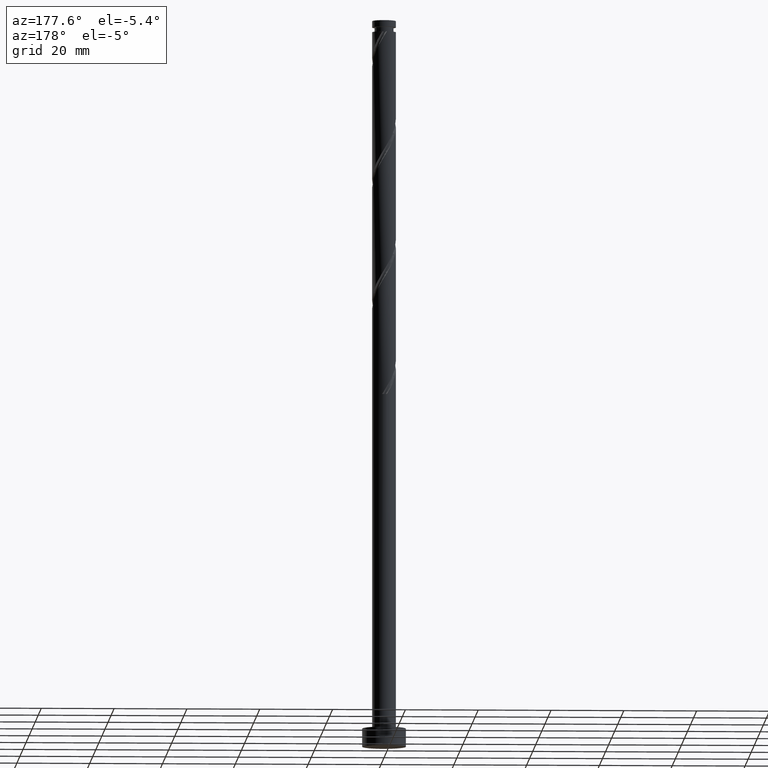
[diagram: clean part render]
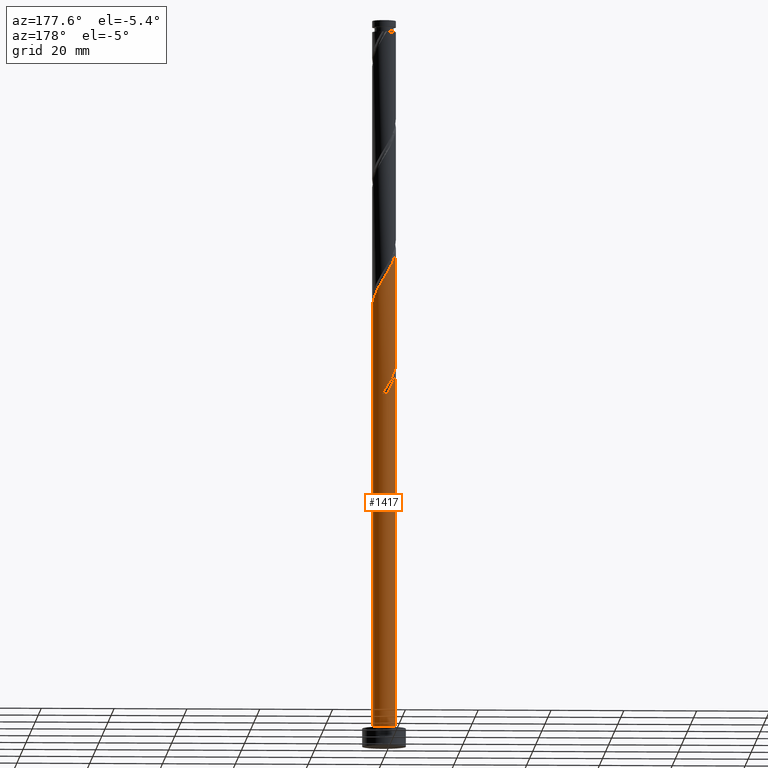
[diagram: same view with one face highlighted and labeled with its STEP entity id]
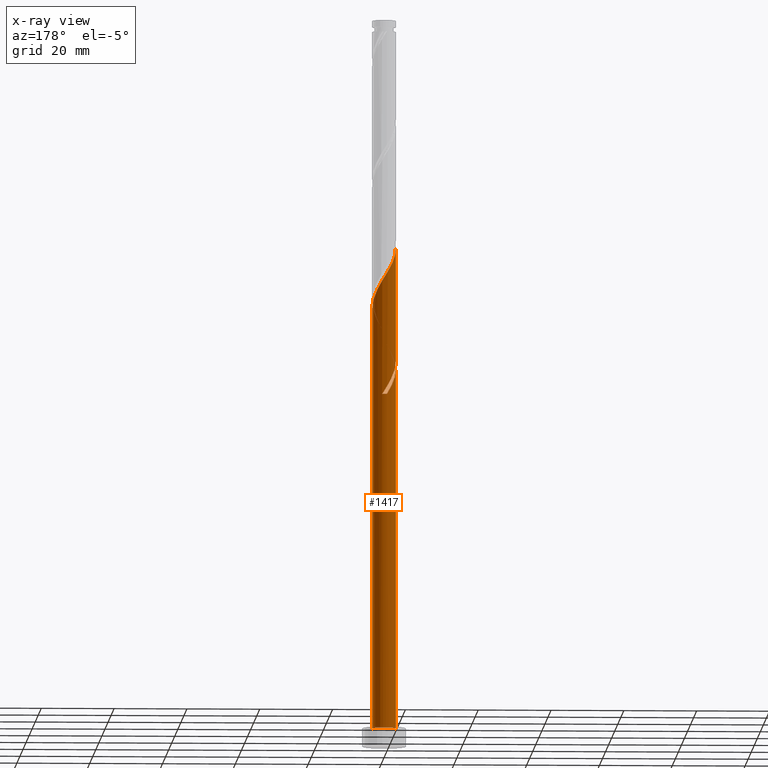
[diagram: x-ray of the same camera — body ghosted, the highlighted face saturated]
A machine part, auxiliary view. The second image highlights one B-rep face of the part: STEP entity #1417.
The next image is the same camera in x-ray: the body ghosted, the highlighted face saturated — about 0% of this face is hidden behind the body in this view.
In plain terms, the highlighted cylindrical surface (edge-blend (fillet) strip) has radius 3.25 mm, axis along (-0, -0, -1).
Its self-contained STEP definition (entity closure, byte-faithful):
#18 = EDGE_CURVE ( 'NONE', #1744, #25, #650, .T. ) ;
#19 = DIRECTION ( 'NONE',  ( 0.000000000000000000, 0.000000000000000000, 1.000000000000000000 ) ) ;
#25 = VERTEX_POINT ( 'NONE', #219 ) ;
#36 = AXIS2_PLACEMENT_3D ( 'NONE', #689, #412, #140 ) ;
#39 = CARTESIAN_POINT ( 'NONE',  ( -3.250000000000004441, -2.048668468775938040E-15, 137.5356658746228788 ) ) ;
#43 = CARTESIAN_POINT ( 'NONE',  ( 2.718314483348208022, 1.832031559402690579, 124.0158991964996176 ) ) ;
#72 = CARTESIAN_POINT ( 'NONE',  ( -3.099854822243938823, 1.066055038935159516, 104.5714547520551605 ) ) ;
#84 = CARTESIAN_POINT ( 'NONE',  ( -2.434919993993785337, 2.152594858037458536, 102.4881214187218745 ) ) ;
#100 = AXIS2_PLACEMENT_3D ( 'NONE', #788, #1325, #1338 ) ;
#116 = CARTESIAN_POINT ( 'NONE',  ( -2.709450634661942470, 1.794819561496372229, 101.0992325298329320 ) ) ;
#133 = EDGE_CURVE ( 'NONE', #983, #710, #1152, .T. ) ;
#140 = DIRECTION ( 'NONE',  ( -1.000000000000000000, 0.000000000000000000, 0.000000000000000000 ) ) ;
#177 = VERTEX_POINT ( 'NONE', #368 ) ;
#219 = CARTESIAN_POINT ( 'NONE',  ( 0.6467418341193044151, 3.184999999999999165, 96.93256586316628898 ) ) ;
#222 = ORIENTED_EDGE ( 'NONE', *, *, #1021, .F. ) ;
#225 = CARTESIAN_POINT ( 'NONE',  ( 0.1996340181341361431, 3.243862860665297276, 128.8770103076107034 ) ) ;
#247 = DIRECTION ( 'NONE',  ( -0.000000000000000000, -0.000000000000000000, -1.000000000000000000 ) ) ;
#253 = CARTESIAN_POINT ( 'NONE',  ( -3.217580543574532381, 0.6266966655717148837, 136.5158991964996176 ) ) ;
#260 = CARTESIAN_POINT ( 'NONE',  ( -2.473158156672230934, 2.151525504639371977, 100.4047880853885175 ) ) ;
#263 = CARTESIAN_POINT ( 'NONE',  ( -3.081661828113092305, 1.032405141962543738, 135.8214547520551605 ) ) ;
#297 = VERTEX_POINT ( 'NONE', #1082 ) ;
#305 = DIRECTION ( 'NONE',  ( -0.000000000000000000, -0.000000000000000000, -1.000000000000000000 ) ) ;
#307 = CARTESIAN_POINT ( 'NONE',  ( -0.6467418341193035269, 3.185000000000004494, 96.93256586316628898 ) ) ;
#355 = CARTESIAN_POINT ( 'NONE',  ( -2.709450634661942470, 1.794819561496372229, 134.4325658631662748 ) ) ;
#361 = CARTESIAN_POINT ( 'NONE',  ( -3.250000000000004885, 0.09991134288743774849, 104.0391688532613870 ) ) ;
#368 = CARTESIAN_POINT ( 'NONE',  ( -3.250000000000000444, 0.000000000000000000, 5.000000000000000000 ) ) ;
#375 = CARTESIAN_POINT ( 'NONE',  ( -2.151525504639367536, 2.473158156672226493, 101.7936769742773748 ) ) ;
#406 = CARTESIAN_POINT ( 'NONE',  ( -3.250000000000005773, 0.09991134288741990166, 137.3725021865947440 ) ) ;
#412 = DIRECTION ( 'NONE',  ( -0.000000000000000000, -0.000000000000000000, -1.000000000000000000 ) ) ;
#463 = CARTESIAN_POINT ( 'NONE',  ( -1.449043299168926158, 2.909084652796075865, 131.6547880853885033 ) ) ;
#472 = CARTESIAN_POINT ( 'NONE',  ( 1.438113618353373813, 2.945743112651654005, 126.7936769742774317 ) ) ;
#488 = CARTESIAN_POINT ( 'NONE',  ( -3.243862860665297276, 0.1996340181341340891, 103.8770103076107034 ) ) ;
#491 = CARTESIAN_POINT ( 'NONE',  ( -1.032405141962541295, 3.081661828113089197, 99.71034364094407465 ) ) ;
#514 = CARTESIAN_POINT ( 'NONE',  ( -2.945743112651655338, 1.438113618353372924, 101.7936769742774032 ) ) ;
#539 = ORIENTED_EDGE ( 'NONE', *, *, #829, .F. ) ;
#546 = AXIS2_PLACEMENT_3D ( 'NONE', #691, #19, #1098 ) ;
#592 = CARTESIAN_POINT ( 'NONE',  ( -1.066055038935161070, 3.099854822243945041, 97.62701030761073184 ) ) ;
#606 = CARTESIAN_POINT ( 'NONE',  ( 3.185000000000004494, 0.6467418341193036380, 121.9325658631662748 ) ) ;
#631 = CARTESIAN_POINT ( 'NONE',  ( -2.152594858037460757, 2.434919993993788889, 99.71034364094408886 ) ) ;
#633 = CARTESIAN_POINT ( 'NONE',  ( -2.909084652796070980, 1.449043299168925270, 103.8770103076107461 ) ) ;
#642 = CARTESIAN_POINT ( 'NONE',  ( -0.1996340181341325348, 3.243862860665293280, 98.32145475205518892 ) ) ;
#650 =( BOUNDED_CURVE ( )  B_SPLINE_CURVE ( 2, ( #893, #1438, #1697, #72, #633, #1445, #84, #375, #1158, #1165, #491, #1286, #642, #1181, #1430 ),
 .UNSPECIFIED., .F., .T. ) 
 B_SPLINE_CURVE_WITH_KNOTS ( ( 3, 2, 2, 2, 2, 2, 2, 3 ),
 ( 0.9295317669814463502, 0.9375000000000000000, 0.9479166666666666297, 0.9583333333333333703, 0.9687500000000000000, 0.9791666666666666297, 0.9895833333333333703, 1.000000000000000000 ),
 .UNSPECIFIED. ) 
 CURVE ( )  GEOMETRIC_REPRESENTATION_ITEM ( )  RATIONAL_B_SPLINE_CURVE ( ( 0.9062941362546435009, 0.9031415850403479162, 0.9090909090909231605, 0.9013135103398417503, 0.9090909090909231605, 0.9013135103398417503, 0.9090909090909231605, 0.9013135103398417503, 0.9090909090909231605, 0.9013135103398417503, 0.9090909090909231605, 0.9013135103398417503, 0.9090909090909231605, 0.9013135103398417503, 0.9090909090909231605 ) ) 
 REPRESENTATION_ITEM ( '' )  );
#655 = CYLINDRICAL_SURFACE ( 'NONE', #36, 3.250000000000000444 ) ;
#689 = CARTESIAN_POINT ( 'NONE',  ( 0.000000000000000000, 0.000000000000000000, 200.0000000000000000 ) ) ;
#691 = CARTESIAN_POINT ( 'NONE',  ( 0.000000000000000000, 0.000000000000000000, 5.000000000000000000 ) ) ;
#694 = ORIENTED_EDGE ( 'NONE', *, *, #901, .T. ) ;
#708 = VERTEX_POINT ( 'NONE', #39 ) ;
#710 = VERTEX_POINT ( 'NONE', #1121 ) ;
#735 = CARTESIAN_POINT ( 'NONE',  ( -1.832031559402692134, 2.718314483348207133, 132.3492325298329604 ) ) ;
#739 = ORIENTED_EDGE ( 'NONE', *, *, #1011, .T. ) ;
#756 = CARTESIAN_POINT ( 'NONE',  ( -2.945743112651655338, 1.438113618353372924, 135.1270103076107603 ) ) ;
#776 = VECTOR ( 'NONE', #305, 1000.000000000000000 ) ;
#788 = CARTESIAN_POINT ( 'NONE',  ( 0.000000000000000000, 0.000000000000000000, 96.93256586316631740 ) ) ;
#793 = CARTESIAN_POINT ( 'NONE',  ( -3.250000000000004441, -2.048668468775938040E-15, 137.5356658746228788 ) ) ;
#814 = CARTESIAN_POINT ( 'NONE',  ( -3.250000000000000444, 0.000000000000000000, 200.0000000000000000 ) ) ;
#824 = ORIENTED_EDGE ( 'NONE', *, *, #133, .T. ) ;
#829 = EDGE_CURVE ( 'NONE', #1528, #297, #1193, .T. ) ;
#837 = ORIENTED_EDGE ( 'NONE', *, *, #1483, .F. ) ;
#860 = CIRCLE ( 'NONE', #100, 3.250000000000000444 ) ;
#869 = CARTESIAN_POINT ( 'NONE',  ( -2.473158156672230934, 2.151525504639371977, 133.7381214187218461 ) ) ;
#883 = CARTESIAN_POINT ( 'NONE',  ( 0.6266966655717167711, 3.217580543574532381, 128.1825658631663032 ) ) ;
#893 = CARTESIAN_POINT ( 'NONE',  ( -3.250000000000000000, 3.618815835356064856E-15, 106.3294658517096707 ) ) ;
#898 = EDGE_CURVE ( 'NONE', #983, #708, #1092, .T. ) ;
#901 = EDGE_CURVE ( 'NONE', #1528, #25, #860, .T. ) ;
#933 = ORIENTED_EDGE ( 'NONE', *, *, #18, .F. ) ;
#963 = FACE_OUTER_BOUND ( 'NONE', #1122, .T. ) ;
#965 = LINE ( 'NONE', #1503, #776 ) ;
#983 = VERTEX_POINT ( 'NONE', #1130 ) ;
#1000 = CARTESIAN_POINT ( 'NONE',  ( -0.6467418341193035269, 3.185000000000004494, 130.2658991964996176 ) ) ;
#1011 = EDGE_CURVE ( 'NONE', #710, #177, #1311, .T. ) ;
#1021 = EDGE_CURVE ( 'NONE', #297, #177, #965, .T. ) ;
#1036 = CARTESIAN_POINT ( 'NONE',  ( 3.250000000000000444, 3.980102097228898231E-16, 200.0000000000000000 ) ) ;
#1082 = CARTESIAN_POINT ( 'NONE',  ( -3.250000000000004441, -2.048668468775938040E-15, 104.2023325412895502 ) ) ;
#1092 =( BOUNDED_CURVE ( )  B_SPLINE_CURVE ( 2, ( #1387, #1280, #606, #1144, #1684, #43, #1346, #1391, #1274, #472, #1292, #883, #225, #1148, #1000, #1403, #463, #735, #1174, #869, #355, #756, #263, #253, #1741, #406, #793 ),
 .UNSPECIFIED., .F., .T. ) 
 B_SPLINE_CURVE_WITH_KNOTS ( ( 3, 2, 2, 2, 2, 2, 2, 2, 2, 2, 2, 2, 2, 3 ),
 ( 0.1795317669814463224, 0.1875000000000000000, 0.1979166666666666297, 0.2083333333333333703, 0.2187500000000000000, 0.2291666666666666297, 0.2395833333333333703, 0.2500000000000000000, 0.2604166666666666297, 0.2708333333333333703, 0.2812500000000000000, 0.2916666666666666297, 0.3020833333333333703, 0.3045317669814467942 ),
 .UNSPECIFIED. ) 
 CURVE ( )  GEOMETRIC_REPRESENTATION_ITEM ( )  RATIONAL_B_SPLINE_CURVE ( ( 0.9062941362546506063, 0.9031415850403547996, 0.9090909090909304879, 0.9013135103398486336, 0.9090909090909304879, 0.9013135103398486336, 0.9090909090909304879, 0.9013135103398486336, 0.9090909090909304879, 0.9013135103398486336, 0.9090909090909304879, 0.9013135103398486336, 0.9090909090909304879, 0.9013135103398486336, 0.9090909090909304879, 0.9013135103398486336, 0.9090909090909304879, 0.9013135103398486336, 0.9090909090909304879, 0.9013135103398486336, 0.9090909090909304879, 0.9013135103398486336, 0.9090909090909304879, 0.9013135103398486336, 0.9090909090909304879, 0.9072628343904237669, 0.9062941362546502733 ) ) 
 REPRESENTATION_ITEM ( '' )  );
#1098 = DIRECTION ( 'NONE',  ( 1.000000000000000000, 0.000000000000000000, 0.000000000000000000 ) ) ;
#1121 = CARTESIAN_POINT ( 'NONE',  ( 3.250000000000000444, 3.980102097228898231E-16, 5.000000000000000000 ) ) ;
#1122 = EDGE_LOOP ( 'NONE', ( #1349, #824, #739, #222, #539, #694, #933, #837 ) ) ;
#1130 = CARTESIAN_POINT ( 'NONE',  ( 3.250000000000004441, -4.486135333085995230E-17, 120.8689992079562217 ) ) ;
#1131 = CARTESIAN_POINT ( 'NONE',  ( -1.832031559402692134, 2.718314483348207133, 99.01589919649963178 ) ) ;
#1144 = CARTESIAN_POINT ( 'NONE',  ( 3.099854822243945929, 1.066055038935159960, 122.6270103076107461 ) ) ;
#1148 = CARTESIAN_POINT ( 'NONE',  ( -0.2274286293034444573, 3.270145177756065280, 129.5714547520551605 ) ) ;
#1152 = LINE ( 'NONE', #1036, #1169 ) ;
#1158 = CARTESIAN_POINT ( 'NONE',  ( -1.794819561496369120, 2.709450634661939361, 101.0992325298329746 ) ) ;
#1165 = CARTESIAN_POINT ( 'NONE',  ( -1.438113618353368928, 2.945743112651649565, 100.4047880853885175 ) ) ;
#1168 = CARTESIAN_POINT ( 'NONE',  ( -3.250000000000000000, 3.618815835356064856E-15, 106.3294658517096707 ) ) ;
#1169 = VECTOR ( 'NONE', #247, 1000.000000000000000 ) ;
#1174 = CARTESIAN_POINT ( 'NONE',  ( -2.152594858037460757, 2.434919993993788889, 133.0436769742773890 ) ) ;
#1181 = CARTESIAN_POINT ( 'NONE',  ( 0.2274286293034480100, 3.270145177756058619, 97.62701030761073184 ) ) ;
#1193 =( BOUNDED_CURVE ( )  B_SPLINE_CURVE ( 2, ( #307, #592, #1421, #1131, #631, #260, #116, #514, #1703, #1315, #488, #361, #1305 ),
 .UNSPECIFIED., .F., .T. ) 
 B_SPLINE_CURVE_WITH_KNOTS ( ( 3, 2, 2, 2, 2, 2, 3 ),
 ( 0.000000000000000000, 0.01041666666666662966, 0.02083333333333337034, 0.03125000000000000000, 0.04166666666666662966, 0.05208333333333336340, 0.05453176698144635709 ),
 .UNSPECIFIED. ) 
 CURVE ( )  GEOMETRIC_REPRESENTATION_ITEM ( )  RATIONAL_B_SPLINE_CURVE ( ( 0.9090909090909304879, 0.9013135103398486336, 0.9090909090909304879, 0.9013135103398486336, 0.9090909090909304879, 0.9013135103398486336, 0.9090909090909304879, 0.9013135103398486336, 0.9090909090909304879, 0.9013135103398486336, 0.9090909090909304879, 0.9072628343904241000, 0.9062941362546506063 ) ) 
 REPRESENTATION_ITEM ( '' )  );
#1224 = CARTESIAN_POINT ( 'NONE',  ( -0.6467418341193035269, 3.185000000000004938, 96.93256586316628898 ) ) ;
#1274 = CARTESIAN_POINT ( 'NONE',  ( 1.794819561496372451, 2.709450634661941582, 126.0992325298329320 ) ) ;
#1280 = CARTESIAN_POINT ( 'NONE',  ( 3.250000000000005329, 0.3266372899592424051, 121.4024255771455216 ) ) ;
#1286 = CARTESIAN_POINT ( 'NONE',  ( -0.6266966655717128853, 3.217580543574526164, 99.01589919649961757 ) ) ;
#1292 = CARTESIAN_POINT ( 'NONE',  ( 1.032405141962544848, 3.081661828113091861, 127.4881214187218177 ) ) ;
#1305 = CARTESIAN_POINT ( 'NONE',  ( -3.250000000000004441, -2.048668468775938040E-15, 104.2023325412895502 ) ) ;
#1311 = CIRCLE ( 'NONE', #546, 3.250000000000000444 ) ;
#1315 = CARTESIAN_POINT ( 'NONE',  ( -3.217580543574532381, 0.6266966655717148837, 103.1825658631662748 ) ) ;
#1325 = DIRECTION ( 'NONE',  ( -4.740750632337814457E-30, -1.067522139062652012E-14, -1.000000000000000000 ) ) ;
#1338 = DIRECTION ( 'NONE',  ( 0.000000000000000000, 1.000000000000000000, -1.281026566875180490E-14 ) ) ;
#1346 = CARTESIAN_POINT ( 'NONE',  ( 2.434919993993790222, 2.152594858037458536, 124.7103436409440320 ) ) ;
#1349 = ORIENTED_EDGE ( 'NONE', *, *, #898, .F. ) ;
#1387 = CARTESIAN_POINT ( 'NONE',  ( 3.250000000000004441, -4.486135333085995847E-17, 120.8689992079562217 ) ) ;
#1391 = CARTESIAN_POINT ( 'NONE',  ( 2.151525504639375086, 2.473158156672228714, 125.4047880853885601 ) ) ;
#1403 = CARTESIAN_POINT ( 'NONE',  ( -1.066055038935161070, 3.099854822243945041, 130.9603436409440462 ) ) ;
#1417 = ADVANCED_FACE ( 'NONE', ( #963 ), #655, .T. ) ;
#1421 = CARTESIAN_POINT ( 'NONE',  ( -1.449043299168926158, 2.909084652796075865, 98.32145475205516050 ) ) ;
#1430 = CARTESIAN_POINT ( 'NONE',  ( 0.6467418341193044151, 3.184999999999999165, 96.93256586316628898 ) ) ;
#1438 = CARTESIAN_POINT ( 'NONE',  ( -3.249999999999999556, 0.3266372899592465129, 105.7960394825203991 ) ) ;
#1445 = CARTESIAN_POINT ( 'NONE',  ( -2.718314483348201804, 1.832031559402689469, 103.1825658631662748 ) ) ;
#1483 = EDGE_CURVE ( 'NONE', #708, #1744, #1732, .T. ) ;
#1503 = CARTESIAN_POINT ( 'NONE',  ( -3.250000000000000444, 0.000000000000000000, 200.0000000000000000 ) ) ;
#1528 = VERTEX_POINT ( 'NONE', #1224 ) ;
#1618 = VECTOR ( 'NONE', #1625, 1000.000000000000000 ) ;
#1625 = DIRECTION ( 'NONE',  ( -0.000000000000000000, -0.000000000000000000, -1.000000000000000000 ) ) ;
#1684 = CARTESIAN_POINT ( 'NONE',  ( 2.909084652796076309, 1.449043299168924825, 123.3214547520551321 ) ) ;
#1697 = CARTESIAN_POINT ( 'NONE',  ( -3.184999999999999165, 0.6467418341193040821, 105.2658991964996318 ) ) ;
#1703 = CARTESIAN_POINT ( 'NONE',  ( -3.081661828113092305, 1.032405141962543738, 102.4881214187218603 ) ) ;
#1732 = LINE ( 'NONE', #814, #1618 ) ;
#1741 = CARTESIAN_POINT ( 'NONE',  ( -3.243862860665297276, 0.1996340181341340891, 137.2103436409440178 ) ) ;
#1744 = VERTEX_POINT ( 'NONE', #1168 ) ;